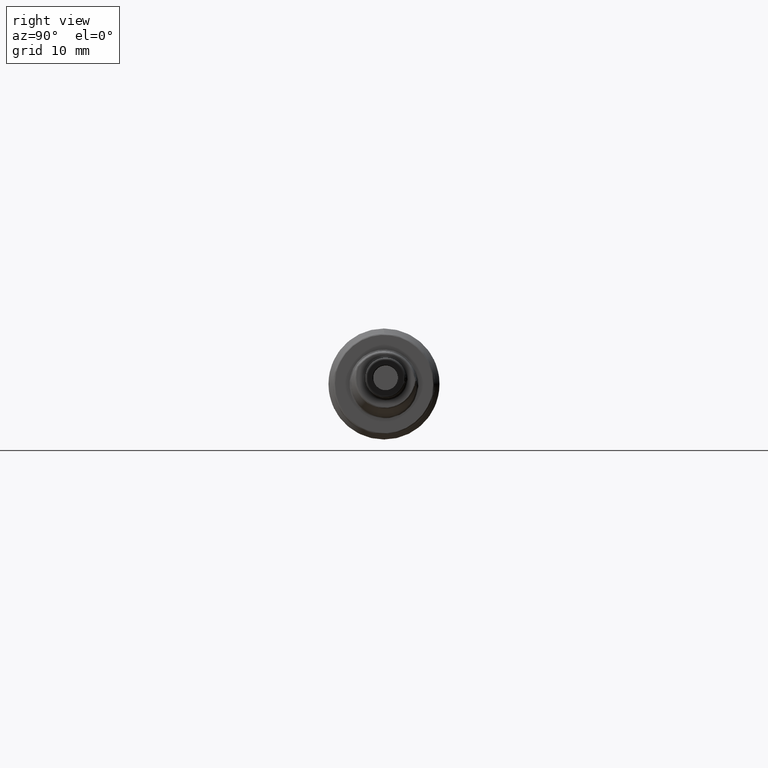
[diagram: clean part render]
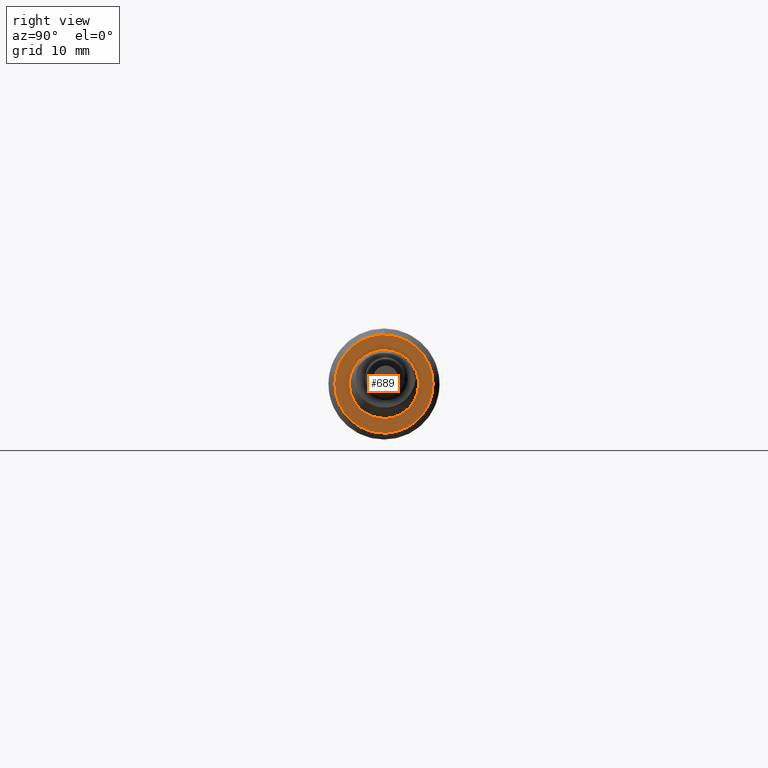
[diagram: same view with one face highlighted and labeled with its STEP entity id]
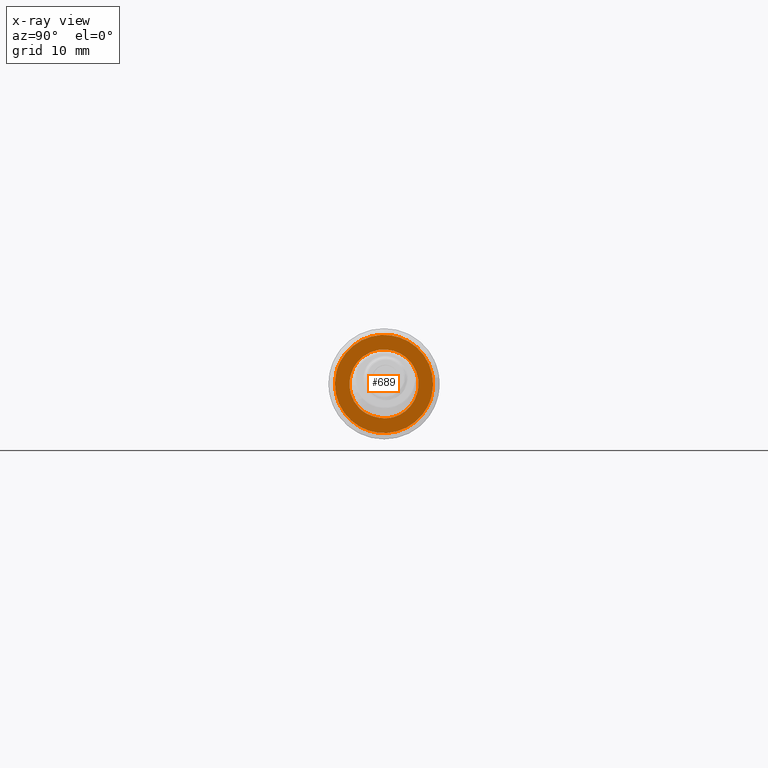
[diagram: x-ray of the same camera — body ghosted, the highlighted face saturated]
A machine part, right view. The second image highlights one B-rep face of the part: STEP entity #689.
The next image is the same camera in x-ray: the body ghosted, the highlighted face saturated — about 0% of this face is hidden behind the body in this view.
In plain terms, the highlighted planar face has unit normal (1, 0, 0).
Its self-contained STEP definition (entity closure, byte-faithful):
#5 = CARTESIAN_POINT ( 'NONE',  ( 2.062992125984252300, 0.1525893212685725000, 0.1591830768728189100 ) ) ;
#14 = CARTESIAN_POINT ( 'NONE',  ( 2.062992125984252300, -0.1869318046776982400, -0.1169212622283033600 ) ) ;
#16 = CARTESIAN_POINT ( 'NONE',  ( 2.062992125984252700, 0.06164002398078607300, 0.2117882309539448100 ) ) ;
#47 = CARTESIAN_POINT ( 'NONE',  ( 2.062992125984252700, 0.2899153778666555000, 0.1209467341589355000 ) ) ;
#51 = ORIENTED_EDGE ( 'NONE', *, *, #2877, .T. ) ;
#58 = CARTESIAN_POINT ( 'NONE',  ( 2.062992125984253600, 0.2352352951570629000, 0.2070805732626559100 ) ) ;
#63 = CARTESIAN_POINT ( 'NONE',  ( 2.062992125984252300, 0.2819333486057165100, -0.1368426284084525200 ) ) ;
#70 = CARTESIAN_POINT ( 'NONE',  ( 2.062992125984252300, 0.2986407186323472000, -0.09691277732411833500 ) ) ;
#94 = CARTESIAN_POINT ( 'NONE',  ( 2.062992125984252700, -0.08279864993907029600, 0.3023331688644408400 ) ) ;
#105 = CARTESIAN_POINT ( 'NONE',  ( 2.062992125984252300, -0.2439831080162786500, -0.1968132688158311700 ) ) ;
#106 = CARTESIAN_POINT ( 'NONE',  ( 2.062992125984252300, -0.06492769751360189000, 0.3069087032163443400 ) ) ;
#114 = CARTESIAN_POINT ( 'NONE',  ( 2.062992125984253600, -0.3058296739857899700, 0.06907007296360626000 ) ) ;
#115 = CARTESIAN_POINT ( 'NONE',  ( 2.062992125984252300, -0.2986407186323472000, 0.09691277732411834900 ) ) ;
#125 = CARTESIAN_POINT ( 'NONE',  ( 2.062992125984253200, -0.1919537826003961700, -0.2477438201958915000 ) ) ;
#127 = CARTESIAN_POINT ( 'NONE',  ( 2.062992125984252300, 0.06907357239015611500, 0.3058294294541355500 ) ) ;
#141 = CARTESIAN_POINT ( 'NONE',  ( 2.062992125984251900, -0.1148877778868597100, -0.2921971259230840000 ) ) ;
#150 = CARTESIAN_POINT ( 'NONE',  ( 2.062992125984252700, -0.3112761098528604200, -0.03632387429331811900 ) ) ;
#151 = CARTESIAN_POINT ( 'NONE',  ( 2.062992125984252700, -0.01313983141252500500, -0.2187593626441411700 ) ) ;
#167 = ORIENTED_EDGE ( 'NONE', *, *, #1809, .T. ) ;
#199 = CARTESIAN_POINT ( 'NONE',  ( 2.062992125984252700, 0.08236366651557995600, -0.2053490536131241900 ) ) ;
#206 = CARTESIAN_POINT ( 'NONE',  ( 2.062992125984252700, -0.1478626255685907300, -0.1642671849071235000 ) ) ;
#235 = CARTESIAN_POINT ( 'NONE',  ( 2.062992125984253600, -0.08674635953978396300, -0.2005990595820023000 ) ) ;
#236 = CARTESIAN_POINT ( 'NONE',  ( 2.062992125984252700, -0.2012787104686376800, 0.08997579787881486400 ) ) ;
#248 = CARTESIAN_POINT ( 'NONE',  ( 2.062992125984252300, -0.02910160080573823100, 0.2185504761639600300 ) ) ;
#249 = CARTESIAN_POINT ( 'NONE',  ( 2.062992125984252300, -0.04629322478919879100, -0.2136691753649089300 ) ) ;
#252 = CARTESIAN_POINT ( 'NONE',  ( 2.062992125984252700, 0.1937836644486549400, 0.1054235246248498400 ) ) ;
#254 = CARTESIAN_POINT ( 'NONE',  ( 2.062992125984251400, 0.2244893625375117600, 0.2189238553553953500 ) ) ;
#256 = CARTESIAN_POINT ( 'NONE',  ( 2.062992125984252700, -0.1668149441552848900, 0.1444951018483242000 ) ) ;
#262 = CARTESIAN_POINT ( 'NONE',  ( 2.062992125984252300, 0.1269226125720199800, 0.1802828470340808200 ) ) ;
#272 = CARTESIAN_POINT ( 'NONE',  ( 2.062992125984251400, -0.2181077267835901700, 0.03716217026752545400 ) ) ;
#279 = CARTESIAN_POINT ( 'NONE',  ( 2.062992125984252300, -0.1904765208491618300, -0.1110514765428699000 ) ) ;
#280 = CARTESIAN_POINT ( 'NONE',  ( 2.062992125984252700, 0.2035069733005890100, 0.08490200787433313500 ) ) ;
#301 = CARTESIAN_POINT ( 'NONE',  ( 2.062992125984252300, 0.3119457341087853400, -0.03017757815996469800 ) ) ;
#331 = EDGE_CURVE ( 'NONE', #866, #1049, #953, .T. ) ;
#340 = CARTESIAN_POINT ( 'NONE',  ( 2.062992125984251900, 0.1819511005490968600, -0.2555602035978886700 ) ) ;
#357 = CARTESIAN_POINT ( 'NONE',  ( 2.062992125984252300, -0.1209467341589353100, 0.2899153778666554400 ) ) ;
#358 = CARTESIAN_POINT ( 'NONE',  ( 2.062992125984252700, 0.3034345220060139500, -0.07834645669291388800 ) ) ;
#364 = CARTESIAN_POINT ( 'NONE',  ( 2.062992125984252300, 0.1968132688158639700, -0.2439831080162593600 ) ) ;
#367 = CARTESIAN_POINT ( 'NONE',  ( 2.062992125984252700, -0.3034345220060140600, 0.07834645669291386000 ) ) ;
#369 = CARTESIAN_POINT ( 'NONE',  ( 2.062992125984252700, 0.02660272498974920700, 0.3122569522475353000 ) ) ;
#382 = CARTESIAN_POINT ( 'NONE',  ( 2.062992125984252300, -0.3111326880179460800, -0.03753429375196859500 ) ) ;
#384 = CARTESIAN_POINT ( 'NONE',  ( 2.062992125984252700, 0.03018025740840848600, 0.3119455468892396400 ) ) ;
#395 = CARTESIAN_POINT ( 'NONE',  ( 2.062992125984252300, -0.1887925304837448100, -0.2501396987023186700 ) ) ;
#396 = CARTESIAN_POINT ( 'NONE',  ( 2.062992125984252300, -0.2477438201959227800, 0.1919537826003553900 ) ) ;
#404 = CARTESIAN_POINT ( 'NONE',  ( 2.062992125984252300, -0.09689222529843132000, -0.2986447071097392800 ) ) ;
#417 = CARTESIAN_POINT ( 'NONE',  ( 2.062992125984252700, -0.2985109993707269500, -0.09544042364734475800 ) ) ;
#428 = CARTESIAN_POINT ( 'NONE',  ( 2.062992125984251900, 0.1838577602994797300, -0.1231751152393008000 ) ) ;
#452 = CARTESIAN_POINT ( 'NONE',  ( 2.062992125984252300, -0.1853064961928692600, 0.1195509368148997800 ) ) ;
#453 = CARTESIAN_POINT ( 'NONE',  ( 2.062992125984252300, 0.1974057765090413700, -0.09820916740295812500 ) ) ;
#454 = DIRECTION ( 'NONE',  ( 0.0000000000000000000, 0.0000000000000000000, -1.000000000000000000 ) ) ;
#467 = VERTEX_POINT ( 'NONE', #1682 ) ;
#494 = CARTESIAN_POINT ( 'NONE',  ( 2.062992125984252300, -0.1354881559151660800, -0.1741763782100797200 ) ) ;
#497 = CARTESIAN_POINT ( 'NONE',  ( 2.062992125984252300, -0.2117867510670789500, 0.06164320394935522000 ) ) ;
#501 = CARTESIAN_POINT ( 'NONE',  ( 2.062992125984252700, -0.02421539991052501900, -0.3124510688097417700 ) ) ;
#504 = EDGE_CURVE ( 'NONE', #1001, #1129, #3342, .T. ) ;
#507 = CARTESIAN_POINT ( 'NONE',  ( 2.062992125984252300, -0.09773862034661179300, -0.1959329508010389000 ) ) ;
#510 = CARTESIAN_POINT ( 'NONE',  ( 2.062992125984252700, -0.2005852787072396300, 0.09151122686248035200 ) ) ;
#513 = CARTESIAN_POINT ( 'NONE',  ( 2.062992125984252700, 0.01356927779736318500, 0.2200561863081790200 ) ) ;
#520 = CARTESIAN_POINT ( 'NONE',  ( 2.062992125984252300, -0.1792902911009147900, 0.1283217673739892000 ) ) ;
#533 = CARTESIAN_POINT ( 'NONE',  ( 2.062992125984252300, 0.3096575601475785600, 0.04934886045913170600 ) ) ;
#534 = CARTESIAN_POINT ( 'NONE',  ( 2.062992125984252700, -0.09535000366734527900, 0.1990445398888910900 ) ) ;
#538 = CARTESIAN_POINT ( 'NONE',  ( 2.062992125984252300, -0.1739964450059606800, -0.1359602166200233600 ) ) ;
#539 = CARTESIAN_POINT ( 'NONE',  ( 2.062992125984252700, 0.04207428274709031800, 0.2168381071500298800 ) ) ;
#546 = CARTESIAN_POINT ( 'NONE',  ( 2.062992125984251900, 0.2199957402612534600, -0.01451364977831450100 ) ) ;
#553 = VERTEX_POINT ( 'NONE', #1727 ) ;
#554 = CARTESIAN_POINT ( 'NONE',  ( 2.062992125984252300, -0.1586006030516225500, -0.1531468116803514400 ) ) ;
#579 = CARTESIAN_POINT ( 'NONE',  ( 2.062992125984252700, 0.3119637016194882800, 0.03001436355030365900 ) ) ;
#597 = CARTESIAN_POINT ( 'NONE',  ( 2.062992125984252300, 0.2644702213584095900, 0.1684740355857638500 ) ) ;
#605 = CARTESIAN_POINT ( 'NONE',  ( 2.062992125984252700, 0.03632387429333677100, -0.3112761098528622500 ) ) ;
#608 = CARTESIAN_POINT ( 'NONE',  ( 2.062992125984253200, -0.2517245936400973000, 0.1866738100583661100 ) ) ;
#613 = CARTESIAN_POINT ( 'NONE',  ( 2.062992125984252700, 0.2091457706890226500, -0.2334001125247296100 ) ) ;
#626 = CARTESIAN_POINT ( 'NONE',  ( 2.062992125984252700, 0.1405358208697507800, -0.2809393141812685000 ) ) ;
#632 = CARTESIAN_POINT ( 'NONE',  ( 2.062992125984252700, -0.2029982536036594200, 0.2387681938682064100 ) ) ;
#641 = CARTESIAN_POINT ( 'NONE',  ( 2.062992125984252300, 0.003490175864280866400, -0.3136569227154446500 ) ) ;
#646 = CARTESIAN_POINT ( 'NONE',  ( 2.062992125984252300, -0.1481661790239309200, -0.2762311733286310600 ) ) ;
#647 = CARTESIAN_POINT ( 'NONE',  ( 2.062992125984252300, -0.1968132688158757400, 0.2439831080162590800 ) ) ;
#653 = CARTESIAN_POINT ( 'NONE',  ( 2.062992125984252700, 0.09544042364738372600, -0.2985109993707137900 ) ) ;
#656 = CARTESIAN_POINT ( 'NONE',  ( 2.062992125984252300, -0.2132579498684654100, -0.2300644017619812300 ) ) ;
#657 = CARTESIAN_POINT ( 'NONE',  ( 2.062992125984252700, -0.2189238553553083400, 0.2244893625376070100 ) ) ;
#667 = CARTESIAN_POINT ( 'NONE',  ( 2.062992125984252700, -0.1855643352018824500, -0.2525432915971651500 ) ) ;
#689 = ADVANCED_FACE ( 'NONE', ( #726, #3276 ), #2849, .T. ) ;
#697 = CARTESIAN_POINT ( 'NONE',  ( 2.062992125984252300, -0.3119457341087874500, 0.03017757815995632900 ) ) ;
#704 = CARTESIAN_POINT ( 'NONE',  ( 2.062992125984252300, 0.06463364627482376400, -0.2107856470099794500 ) ) ;
#717 = CARTESIAN_POINT ( 'NONE',  ( 2.062992125984252300, 0.1289270148711651500, -0.1789633460359463000 ) ) ;
#726 = FACE_OUTER_BOUND ( 'NONE', #738, .T. ) ;
#734 = CARTESIAN_POINT ( 'NONE',  ( 2.062992125984251900, -0.2088240111013917900, 0.07127749340766774400 ) ) ;
#735 = CARTESIAN_POINT ( 'NONE',  ( 2.062992125984252700, 0.1169243228797211100, -0.1869279913215918000 ) ) ;
#738 = EDGE_LOOP ( 'NONE', ( #2782, #2888 ) ) ;
#767 = CARTESIAN_POINT ( 'NONE',  ( 2.062992125984252300, -0.1182010829754081100, -0.1848707398817964500 ) ) ;
#771 = CARTESIAN_POINT ( 'NONE',  ( 2.062992125984252300, -0.07914532355362570400, -0.2033996599041156500 ) ) ;
#778 = CARTESIAN_POINT ( 'NONE',  ( 2.062992125984251900, 0.09951821867695814800, 0.1968642829615531200 ) ) ;
#785 = CARTESIAN_POINT ( 'NONE',  ( 2.062992125984253200, -0.1157216164180880900, -0.1863425600224459200 ) ) ;
#793 = CARTESIAN_POINT ( 'NONE',  ( 2.062992125984252300, 0.2112228341227979400, 0.06362963390737909300 ) ) ;
#798 = CARTESIAN_POINT ( 'NONE',  ( 2.062992125984252700, 0.3127433634846038500, 0.02117733568474373600 ) ) ;
#802 = CARTESIAN_POINT ( 'NONE',  ( 2.062992125984252300, -0.1539541039800705600, 0.1578613808321315300 ) ) ;
#806 = CARTESIAN_POINT ( 'NONE',  ( 2.062992125984251900, 0.1821973241968634600, 0.1250712667591576100 ) ) ;
#809 = CARTESIAN_POINT ( 'NONE',  ( 2.062992125984252700, 0.3136569227154451000, 0.003490175864284374800 ) ) ;
#810 = CARTESIAN_POINT ( 'NONE',  ( 2.062992125984252700, -0.05292297732668374600, 0.2142550711080397100 ) ) ;
#815 = CARTESIAN_POINT ( 'NONE',  ( 2.062992125984252300, 0.2168333254561873600, 0.04020267256485071000 ) ) ;
#825 = CARTESIAN_POINT ( 'NONE',  ( 2.062992125984252300, -0.2199625846874069800, -0.01632530935699216500 ) ) ;
#827 = CARTESIAN_POINT ( 'NONE',  ( 2.062992125984252700, 0.1990445398888770200, 0.09535000366735053900 ) ) ;
#840 = CARTESIAN_POINT ( 'NONE',  ( 2.062992125984252300, -0.2083151000895844300, -0.07469317871206201900 ) ) ;
#862 = CARTESIAN_POINT ( 'NONE',  ( 2.062992125984252300, 0.2985109993707109100, 0.09544042364740400200 ) ) ;
#866 = VERTEX_POINT ( 'NONE', #2726 ) ;
#881 = CARTESIAN_POINT ( 'NONE',  ( 2.062992125984251900, 0.3122570649613430900, -0.02660111197282893200 ) ) ;
#886 = CARTESIAN_POINT ( 'NONE',  ( 2.062992125984252700, 0.2762311733286863500, -0.1481661790238353600 ) ) ;
#891 = CARTESIAN_POINT ( 'NONE',  ( 2.062992125984253200, -0.2922000893123133400, 0.1148814128578112400 ) ) ;
#898 = CARTESIAN_POINT ( 'NONE',  ( 2.062992125984252700, 0.2922000893123132300, -0.1148814128578112400 ) ) ;
#907 = CARTESIAN_POINT ( 'NONE',  ( 2.062992125984252700, -0.03380025719735942800, 0.3115603717666515800 ) ) ;
#914 = CARTESIAN_POINT ( 'NONE',  ( 2.062992125984253200, 0.1209467341589064200, -0.2899153778666829200 ) ) ;
#919 = CARTESIAN_POINT ( 'NONE',  ( 2.062992125984252300, -0.03001436355023604000, 0.3119637016194961600 ) ) ;
#925 = CARTESIAN_POINT ( 'NONE',  ( 2.062992125984253200, 0.2477438201959302200, -0.1919537826003547600 ) ) ;
#928 = CARTESIAN_POINT ( 'NONE',  ( 2.062992125984252700, -0.1345534222994521900, -0.2830328859365786600 ) ) ;
#929 = CARTESIAN_POINT ( 'NONE',  ( 2.062992125984251900, -0.2501396987023374900, 0.1887925304837202700 ) ) ;
#942 = CARTESIAN_POINT ( 'NONE',  ( 2.062992125984252300, -0.3125364556354888700, 0.02309110821099009600 ) ) ;
#944 = CARTESIAN_POINT ( 'NONE',  ( 2.062992125984252300, -0.02921827882054493100, -0.2162907674226246000 ) ) ;
#953 = B_SPLINE_CURVE_WITH_KNOTS ( 'NONE', 3,
 ( #554, #2158, #538, #1111, #14, #2445, #279, #1357, #840, #2428, #1118, #825, #1914, #2975, #1381, #3242, #272, #1656 ),
 .UNSPECIFIED., .F., .F.,
 ( 4, 1, 1, 2, 2, 2, 1, 1, 2, 2, 4 ),
 ( 0.0000000000000000000, 0.1250000000000011400, 0.1875000000000014700, 0.2187500000000015300, 0.2500000000000015500, 0.5000000000000013300, 0.6250000000000011100, 0.6875000000000008900, 0.7187500000000008900, 0.7500000000000007800, 1.000000000000000000 ),
 .UNSPECIFIED. ) ;
#956 = CARTESIAN_POINT ( 'NONE',  ( 2.062992125984252700, -0.3096575601476126400, -0.04934886045900532100 ) ) ;
#968 = CARTESIAN_POINT ( 'NONE',  ( 2.062992125984252300, -0.05505367953036242200, -0.3087744141466213800 ) ) ;
#980 = CARTESIAN_POINT ( 'NONE',  ( 2.062992125984252300, -0.3115603717666432500, -0.03380025719736364000 ) ) ;
#982 = CARTESIAN_POINT ( 'NONE',  ( 2.062992125984252700, 0.05727180057693970200, -0.2130430252400283300 ) ) ;
#1000 = CARTESIAN_POINT ( 'NONE',  ( 2.062992125984252300, -0.02921827882054493100, -0.2162907674226246000 ) ) ;
#1001 = VERTEX_POINT ( 'NONE', #1663 ) ;
#1016 = CARTESIAN_POINT ( 'NONE',  ( 2.062992125984252700, -0.1198455337391964600, -0.1838798346151599400 ) ) ;
#1019 = CARTESIAN_POINT ( 'NONE',  ( 2.062992125984252300, -0.2134715230193064100, 0.05511811023622080500 ) ) ;
#1020 = CARTESIAN_POINT ( 'NONE',  ( 2.062992125984252700, 0.1422213383967820800, -0.1689499223505434900 ) ) ;
#1049 = VERTEX_POINT ( 'NONE', #2822 ) ;
#1063 = CARTESIAN_POINT ( 'NONE',  ( 2.062992125984252300, 0.2134715230193063300, -0.05511811023622083900 ) ) ;
#1075 = CARTESIAN_POINT ( 'NONE',  ( 2.062992125984251900, 0.1358424922031784800, 0.1738120352680058200 ) ) ;
#1081 = CARTESIAN_POINT ( 'NONE',  ( 2.062992125984252300, 0.2439831080162205000, 0.1968132688159411100 ) ) ;
#1083 = CARTESIAN_POINT ( 'NONE',  ( 2.062992125984251900, -0.07785346071553718400, 0.2063044973465128200 ) ) ;
#1099 = CARTESIAN_POINT ( 'NONE',  ( 2.062992125984252300, -0.03102396697065939300, 0.2182866251582867800 ) ) ;
#1111 = CARTESIAN_POINT ( 'NONE',  ( 2.062992125984251900, -0.1832335619335932500, -0.1227702410609696600 ) ) ;
#1112 = CARTESIAN_POINT ( 'NONE',  ( 2.062992125984253200, 0.2204683858757253700, 0.009589861895521840600 ) ) ;
#1118 = CARTESIAN_POINT ( 'NONE',  ( 2.062992125984252700, -0.2183781542218658500, -0.03289326855561886700 ) ) ;
#1129 = VERTEX_POINT ( 'NONE', #358 ) ;
#1139 = CARTESIAN_POINT ( 'NONE',  ( 2.062992125984252700, 0.2387681938681817100, 0.2029982536037015000 ) ) ;
#1146 = CARTESIAN_POINT ( 'NONE',  ( 2.062992125984252300, 0.3115603717666468600, 0.03380025719740009600 ) ) ;
#1172 = CARTESIAN_POINT ( 'NONE',  ( 2.062992125984252300, -0.09544042364740275300, 0.2985109993707112900 ) ) ;
#1182 = CARTESIAN_POINT ( 'NONE',  ( 2.062992125984252300, -0.2802642533878481600, 0.1402645846755808900 ) ) ;
#1188 = CARTESIAN_POINT ( 'NONE',  ( 2.062992125984252300, 0.02117733568474105100, -0.3127433634846035200 ) ) ;
#1193 = CARTESIAN_POINT ( 'NONE',  ( 2.062992125984252300, 0.1368426284084263400, 0.2819333486057316600 ) ) ;
#1205 = CARTESIAN_POINT ( 'NONE',  ( 2.062992125984252700, -0.2899153778666828700, -0.1209467341589063600 ) ) ;
#1207 = CARTESIAN_POINT ( 'NONE',  ( 2.062992125984252700, -0.09790669278667642200, 0.2977115156441755800 ) ) ;
#1212 = CARTESIAN_POINT ( 'NONE',  ( 2.062992125984252300, 0.2836071680917620100, -0.1333380476962547100 ) ) ;
#1215 = CARTESIAN_POINT ( 'NONE',  ( 2.062992125984252300, -0.1402645846756118700, -0.2802642533878274000 ) ) ;
#1225 = CARTESIAN_POINT ( 'NONE',  ( 2.062992125984252300, 0.02199163720728627600, -0.2185719225527546500 ) ) ;
#1237 = CARTESIAN_POINT ( 'NONE',  ( 2.062992125984251900, -0.03018025740840786500, -0.3119455468892518000 ) ) ;
#1284 = EDGE_CURVE ( 'NONE', #467, #553, #1950, .T. ) ;
#1327 = CARTESIAN_POINT ( 'NONE',  ( 2.062992125984252700, 0.002870791511438015800, 0.2205054948817412900 ) ) ;
#1339 = CARTESIAN_POINT ( 'NONE',  ( 2.062992125984252300, 0.09151045671384246100, 0.2005856371173398700 ) ) ;
#1347 = CARTESIAN_POINT ( 'NONE',  ( 2.062992125984252700, -0.1738120352679882200, 0.1358424922031918100 ) ) ;
#1357 = CARTESIAN_POINT ( 'NONE',  ( 2.062992125984252300, -0.2011293366610840700, -0.09231887656827099400 ) ) ;
#1358 = CARTESIAN_POINT ( 'NONE',  ( 2.062992125984252700, 0.2189997767221504900, -0.02879966747699854200 ) ) ;
#1369 = CARTESIAN_POINT ( 'NONE',  ( 2.062992125984252300, 0.2076423940129799300, 0.07420531596367112300 ) ) ;
#1381 = CARTESIAN_POINT ( 'NONE',  ( 2.062992125984252700, -0.2204759576228209100, -0.001929593404044671700 ) ) ;
#1405 = CARTESIAN_POINT ( 'NONE',  ( 2.062992125984251900, 0.1887925304836765600, 0.2501396987023776200 ) ) ;
#1415 = CARTESIAN_POINT ( 'NONE',  ( 2.062992125984252300, 0.3000789681567394600, 0.09039241009182673300 ) ) ;
#1420 = B_SPLINE_CURVE_WITH_KNOTS ( 'NONE', 3,
 ( #2898, #235, #507, #2912, #785, #767, #1016, #2662, #494, #206, #2110 ),
 .UNSPECIFIED., .F., .F.,
 ( 4, 1, 1, 1, 2, 2, 4 ),
 ( 0.0000000000000000000, 0.2500000000000010500, 0.3750000000000018300, 0.4375000000000021600, 0.4687500000000021100, 0.5000000000000020000, 1.000000000000000000 ),
 .UNSPECIFIED. ) ;
#1442 = CARTESIAN_POINT ( 'NONE',  ( 2.062992125984252700, 0.3034345220060139500, -0.07834645669291388800 ) ) ;
#1447 = CARTESIAN_POINT ( 'NONE',  ( 2.062992125984252700, 0.05505367953036407300, 0.3087744141465935100 ) ) ;
#1463 = CARTESIAN_POINT ( 'NONE',  ( 2.062992125984252300, -0.2334001125247162100, -0.2091457706890353100 ) ) ;
#1464 = CARTESIAN_POINT ( 'NONE',  ( 2.062992125984252300, -0.2091457706890249600, 0.2334001125247294200 ) ) ;
#1476 = CARTESIAN_POINT ( 'NONE',  ( 2.062992125984252300, -0.2592722395254480900, 0.1763296683894362000 ) ) ;
#1482 = CARTESIAN_POINT ( 'NONE',  ( 2.062992125984252700, -0.01169271099212203900, -0.3133329486286400800 ) ) ;
#1485 = CARTESIAN_POINT ( 'NONE',  ( 2.062992125984252300, 0.01169271099220850700, 0.3133329486286508000 ) ) ;
#1492 = B_SPLINE_CURVE_WITH_KNOTS ( 'NONE', 3,
 ( #2741, #1975, #2233, #1706, #301, #881, #2198, #2408, #1617, #809, #798, #579, #1146, #2147, #3468, #533, #2687, #3273, #1415, #862, #3207, #47, #1692, #597, #2678, #1081, #1139, #58, #1900, #254, #1965, #2422, #3000, #1405, #1683, #2221, #2750, #3308, #2522, #1773, #1193, #3320, #2261, #1757, #3043, #127, #1447, #2034, #384, #369, #2798, #1720, #1485, #2247, #2788, #919, #907, #2271, #3346, #1731, #106, #94, #1998, #1172, #1207, #357, #2772, #2015, #2024, #647, #632, #3058, #1464, #657, #1741, #2537, #396, #929, #608, #3068, #1476, #3030, #2501, #1182, #3334, #2551, #1986, #891, #115, #2279 ),
 .UNSPECIFIED., .F., .F.,
 ( 4, 1, 1, 1, 2, 2, 1, 1, 1, 2, 2, 1, 1, 2, 2, 2, 1, 1, 2, 2, 1, 1, 1, 2, 2, 1, 1, 1, 2, 2, 2, 1, 1, 1, 2, 2, 1, 1, 1, 2, 2, 1, 1, 2, 2, 2, 1, 1, 2, 2, 1, 1, 1, 2, 2, 1, 1, 1, 2, 2, 4 ),
 ( 0.0000000000000000000, 0.03125000000000050700, 0.04687500000000077700, 0.05468750000000091600, 0.05859375000000097800, 0.06250000000000104100, 0.09375000000000145700, 0.1093750000000016800, 0.1171875000000017900, 0.1210937500000018600, 0.1250000000000019400, 0.1562500000000024400, 0.1718750000000027200, 0.1796875000000028600, 0.1875000000000029700, 0.2500000000000040500, 0.2812500000000045500, 0.2968750000000048800, 0.3046875000000051100, 0.3125000000000053300, 0.3437500000000061100, 0.3593750000000064900, 0.3671875000000066100, 0.3710937500000066600, 0.3750000000000067700, 0.4062500000000069400, 0.4218750000000069400, 0.4296875000000069400, 0.4335937500000069400, 0.4375000000000068800, 0.5000000000000058800, 0.5312500000000054400, 0.5468750000000051100, 0.5546875000000050000, 0.5585937500000050000, 0.5625000000000048800, 0.5937500000000044400, 0.6093750000000042200, 0.6171875000000041100, 0.6210937500000041100, 0.6250000000000040000, 0.6562500000000036600, 0.6718750000000034400, 0.6796875000000033300, 0.6875000000000032200, 0.7500000000000027800, 0.7812500000000026600, 0.7968750000000025500, 0.8046875000000025500, 0.8125000000000026600, 0.8437500000000022200, 0.8593750000000018900, 0.8671875000000018900, 0.8710937500000017800, 0.8750000000000017800, 0.9062500000000012200, 0.9218750000000011100, 0.9296875000000010000, 0.9335937500000008900, 0.9375000000000008900, 1.000000000000000000 ),
 .UNSPECIFIED. ) ;
#1496 = CARTESIAN_POINT ( 'NONE',  ( 2.062992125984252300, -0.1636374866206699300, -0.2676109150069038200 ) ) ;
#1528 = CARTESIAN_POINT ( 'NONE',  ( 2.062992125984252300, 0.2134715230193063300, -0.05511811023622083900 ) ) ;
#1558 = CARTESIAN_POINT ( 'NONE',  ( 2.062992125984252700, -0.1823148059650874500, 0.1239869052791944400 ) ) ;
#1604 = CARTESIAN_POINT ( 'NONE',  ( 2.062992125984252700, 0.01451408760452667000, 0.2199957097377758500 ) ) ;
#1614 = CARTESIAN_POINT ( 'NONE',  ( 2.062992125984252700, 0.1089734910562300000, 0.1918933695432313600 ) ) ;
#1617 = CARTESIAN_POINT ( 'NONE',  ( 2.062992125984252700, 0.3133329486286403100, -0.01169271099211996800 ) ) ;
#1619 = CARTESIAN_POINT ( 'NONE',  ( 2.062992125984252700, -0.06362963390737652600, 0.2112228341227920500 ) ) ;
#1625 = CARTESIAN_POINT ( 'NONE',  ( 2.062992125984252300, 0.07127192846267176000, 0.2088266009034069900 ) ) ;
#1638 = CARTESIAN_POINT ( 'NONE',  ( 2.062992125984252300, 0.2063044973465058300, 0.07785346071553975200 ) ) ;
#1650 = CARTESIAN_POINT ( 'NONE',  ( 2.062992125984252300, -0.009589861895574635200, 0.2204683858757292300 ) ) ;
#1656 = CARTESIAN_POINT ( 'NONE',  ( 2.062992125984252300, -0.2134715230193064100, 0.05511811023622080500 ) ) ;
#1659 = B_SPLINE_CURVE_WITH_KNOTS ( 'NONE', 3,
 ( #1019, #497, #734, #1855, #3462, #236, #510, #2928, #3195, #2084, #452, #1558, #3411, #520, #1347, #256, #2148, #802, #3210, #2680, #1904, #3470, #534, #2409, #1083, #2424, #1619, #810, #2940, #2689, #1099, #248, #2139, #1650, #1327, #2152, #3200, #513, #1604, #3235, #539, #16, #1625, #2683, #3215, #2438, #1339, #2394, #778, #1614, #2405, #1892, #262, #2660, #1075, #2430, #5, #2160, #2934, #3227, #806, #252, #827, #280, #1638, #1369, #793, #2143, #815, #2693, #2700, #2416, #1923, #1112, #1907, #2968, #1915, #2174, #546, #1358, #2134, #1063 ),
 .UNSPECIFIED., .F., .F.,
 ( 4, 1, 1, 1, 2, 2, 1, 1, 2, 2, 1, 2, 2, 2, 1, 2, 2, 1, 1, 2, 2, 1, 1, 1, 2, 2, 2, 1, 1, 1, 2, 2, 1, 1, 2, 2, 1, 2, 2, 2, 1, 2, 2, 1, 1, 2, 2, 1, 1, 1, 2, 2, 4 ),
 ( 0.0000000000000000000, 0.03125000000000049300, 0.04687500000000079800, 0.05468750000000095100, 0.05859375000000103400, 0.06250000000000112400, 0.09375000000000147100, 0.1093750000000017200, 0.1171875000000018000, 0.1250000000000018900, 0.1562500000000021100, 0.1718750000000022200, 0.1875000000000023000, 0.2500000000000026100, 0.2812500000000027200, 0.2968750000000027200, 0.3125000000000027800, 0.3437500000000027200, 0.3593750000000026600, 0.3671875000000026600, 0.3750000000000026600, 0.4062500000000026600, 0.4218750000000027200, 0.4296875000000027200, 0.4335937500000027200, 0.4375000000000027200, 0.5000000000000026600, 0.5312500000000026600, 0.5468750000000026600, 0.5546875000000026600, 0.5585937500000025500, 0.5625000000000025500, 0.5937500000000023300, 0.6093750000000023300, 0.6171875000000022200, 0.6250000000000021100, 0.6562500000000017800, 0.6718750000000016700, 0.6875000000000016700, 0.7500000000000013300, 0.7812500000000013300, 0.7968750000000013300, 0.8125000000000013300, 0.8437500000000013300, 0.8593750000000012200, 0.8671875000000011100, 0.8750000000000010000, 0.9062500000000008900, 0.9218750000000007800, 0.9296875000000006700, 0.9335937500000006700, 0.9375000000000005600, 1.000000000000000000 ),
 .UNSPECIFIED. ) ;
#1663 = CARTESIAN_POINT ( 'NONE',  ( 2.062992125984252700, -0.3034345220060140600, 0.07834645669291386000 ) ) ;
#1676 = CARTESIAN_POINT ( 'NONE',  ( 2.062992125984252300, 0.2134715230193063300, -0.05511811023622083900 ) ) ;
#1682 = CARTESIAN_POINT ( 'NONE',  ( 2.062992125984252300, -0.02921827882054493100, -0.2162907674226246000 ) ) ;
#1683 = CARTESIAN_POINT ( 'NONE',  ( 2.062992125984252300, 0.1866738100583431300, 0.2517245936401184000 ) ) ;
#1692 = CARTESIAN_POINT ( 'NONE',  ( 2.062992125984252300, 0.2809393141813273900, 0.1405358208696332300 ) ) ;
#1698 = B_SPLINE_CURVE_WITH_KNOTS ( 'NONE', 3,
 ( #2836, #982, #2305, #2071, #3109, #1225, #3370, #2584, #3096, #151, #944 ),
 .UNSPECIFIED., .F., .F.,
 ( 4, 1, 1, 1, 2, 2, 4 ),
 ( 0.0000000000000000000, 0.2500000000000000600, 0.3750000000000001100, 0.4375000000000000600, 0.4687500000000000600, 0.5000000000000000000, 1.000000000000000000 ),
 .UNSPECIFIED. ) ;
#1706 = CARTESIAN_POINT ( 'NONE',  ( 2.062992125984252700, 0.3110776417294031600, -0.03849905365337760000 ) ) ;
#1720 = CARTESIAN_POINT ( 'NONE',  ( 2.062992125984252300, 0.02309110821098889600, 0.3125364556354867700 ) ) ;
#1727 = CARTESIAN_POINT ( 'NONE',  ( 2.062992125984252300, -0.07914532355362570400, -0.2033996599041156500 ) ) ;
#1731 = CARTESIAN_POINT ( 'NONE',  ( 2.062992125984252700, -0.04934886045912909700, 0.3096575601475795600 ) ) ;
#1738 = CARTESIAN_POINT ( 'NONE',  ( 2.062992125984252700, 0.08279864993901708800, -0.3023331688644475000 ) ) ;
#1740 = CARTESIAN_POINT ( 'NONE',  ( 2.062992125984252300, -0.3023331688644845200, -0.08279864993890778700 ) ) ;
#1741 = CARTESIAN_POINT ( 'NONE',  ( 2.062992125984252700, -0.2300644017620533700, 0.2132579498683723200 ) ) ;
#1757 = CARTESIAN_POINT ( 'NONE',  ( 2.062992125984252300, 0.1148877778865743000, 0.2921971259231891400 ) ) ;
#1772 = CARTESIAN_POINT ( 'NONE',  ( 2.062992125984253200, -0.3119637016194822800, -0.03001436355024307900 ) ) ;
#1773 = CARTESIAN_POINT ( 'NONE',  ( 2.062992125984253200, 0.1402645846755128100, 0.2802642533878849700 ) ) ;
#1782 = CARTESIAN_POINT ( 'NONE',  ( 2.062992125984252300, -0.2809393141812389100, -0.1405358208698009000 ) ) ;
#1791 = CARTESIAN_POINT ( 'NONE',  ( 2.062992125984252300, -0.3127433634845938600, -0.02117733568463985700 ) ) ;
#1801 = CARTESIAN_POINT ( 'NONE',  ( 2.062992125984252300, 0.1942556994780307300, -0.1042998497479908400 ) ) ;
#1809 = EDGE_CURVE ( 'NONE', #553, #866, #1420, .T. ) ;
#1855 = CARTESIAN_POINT ( 'NONE',  ( 2.062992125984252300, -0.2046052125760682600, 0.08224913333076822000 ) ) ;
#1862 = EDGE_CURVE ( 'NONE', #1129, #1001, #1492, .T. ) ;
#1892 = CARTESIAN_POINT ( 'NONE',  ( 2.062992125984252700, 0.1239869052791736500, 0.1823148059650960800 ) ) ;
#1900 = CARTESIAN_POINT ( 'NONE',  ( 2.062992125984252700, 0.2334001125247532600, 0.2091457706890033100 ) ) ;
#1904 = CARTESIAN_POINT ( 'NONE',  ( 2.062992125984251400, -0.1250712667591636100, 0.1821973241968475300 ) ) ;
#1907 = CARTESIAN_POINT ( 'NONE',  ( 2.062992125984252700, 0.2205054948817383700, -0.002870791511477712800 ) ) ;
#1914 = CARTESIAN_POINT ( 'NONE',  ( 2.062992125984252700, -0.2202961183714337300, -0.009178404636040792300 ) ) ;
#1915 = CARTESIAN_POINT ( 'NONE',  ( 2.062992125984252700, 0.2201590010425038800, -0.01178515608885043000 ) ) ;
#1923 = CARTESIAN_POINT ( 'NONE',  ( 2.062992125984253200, 0.2196581428058145800, 0.02024141773309046800 ) ) ;
#1950 = B_SPLINE_CURVE_WITH_KNOTS ( 'NONE', 3,
 ( #1000, #249, #3175, #771 ),
 .UNSPECIFIED., .F., .F.,
 ( 4, 4 ),
 ( 0.0000000000000000000, 1.000000000000000000 ),
 .UNSPECIFIED. ) ;
#1965 = CARTESIAN_POINT ( 'NONE',  ( 2.062992125984252300, 0.2132579498682058200, 0.2300644017622057700 ) ) ;
#1971 = CARTESIAN_POINT ( 'NONE',  ( 2.062992125984252300, 0.2300644017620700500, -0.2132579498683707400 ) ) ;
#1975 = CARTESIAN_POINT ( 'NONE',  ( 2.062992125984253200, 0.3058296739857870300, -0.06907007296361723800 ) ) ;
#1986 = CARTESIAN_POINT ( 'NONE',  ( 2.062992125984252700, -0.2836071680917621700, 0.1333380476962547400 ) ) ;
#1991 = CARTESIAN_POINT ( 'NONE',  ( 2.062992125984252700, 0.2676109150069775300, -0.1636374866205424800 ) ) ;
#1998 = CARTESIAN_POINT ( 'NONE',  ( 2.062992125984252700, -0.09039241009182451300, 0.3000789681567401800 ) ) ;
#2007 = CARTESIAN_POINT ( 'NONE',  ( 2.062992125984252300, 0.03380025719739917400, -0.3115603717666467500 ) ) ;
#2013 = CARTESIAN_POINT ( 'NONE',  ( 2.062992125984252300, -0.1992122378894646800, -0.2420236843158108900 ) ) ;
#2015 = CARTESIAN_POINT ( 'NONE',  ( 2.062992125984252300, -0.1684740355857140500, 0.2644702213584389500 ) ) ;
#2023 = CARTESIAN_POINT ( 'NONE',  ( 2.062992125984251900, -0.3122570649613445900, 0.02660111197282391200 ) ) ;
#2024 = CARTESIAN_POINT ( 'NONE',  ( 2.062992125984252300, -0.1819511005491125700, 0.2555602035978885600 ) ) ;
#2033 = CARTESIAN_POINT ( 'NONE',  ( 2.062992125984252700, -0.2244893625376601900, -0.2189238553552672100 ) ) ;
#2034 = CARTESIAN_POINT ( 'NONE',  ( 2.062992125984252300, 0.03850364665070980800, 0.3110773207816106000 ) ) ;
#2046 = CARTESIAN_POINT ( 'NONE',  ( 2.062992125984252700, -0.2555602035979145400, -0.1819511005490534200 ) ) ;
#2058 = CARTESIAN_POINT ( 'NONE',  ( 2.062992125984252300, -0.3000789681567682700, -0.09039241009172011000 ) ) ;
#2065 = CARTESIAN_POINT ( 'NONE',  ( 2.062992125984252700, 0.1230092830121215100, -0.1829845326087188000 ) ) ;
#2071 = CARTESIAN_POINT ( 'NONE',  ( 2.062992125984252300, 0.03209138577018086400, -0.2176808710370546100 ) ) ;
#2084 = CARTESIAN_POINT ( 'NONE',  ( 2.062992125984252700, -0.1918933695432135700, 0.1089734910562730500 ) ) ;
#2090 = CARTESIAN_POINT ( 'NONE',  ( 2.062992125984252300, -0.02660272498974884700, -0.3122569522475425700 ) ) ;
#2110 = CARTESIAN_POINT ( 'NONE',  ( 2.062992125984252300, -0.1586006030516225500, -0.1531468116803514400 ) ) ;
#2134 = CARTESIAN_POINT ( 'NONE',  ( 2.062992125984252700, 0.2168445663383465300, -0.04205436963554225200 ) ) ;
#2139 = CARTESIAN_POINT ( 'NONE',  ( 2.062992125984252700, -0.02024141773312072500, 0.2196581428058168600 ) ) ;
#2143 = CARTESIAN_POINT ( 'NONE',  ( 2.062992125984252300, 0.2142550711080500300, 0.05292297732668818000 ) ) ;
#2147 = CARTESIAN_POINT ( 'NONE',  ( 2.062992125984252300, 0.3112761098528623000, 0.03632387429333726300 ) ) ;
#2148 = CARTESIAN_POINT ( 'NONE',  ( 2.062992125984252700, -0.1591830768727947300, 0.1525893212685907900 ) ) ;
#2152 = CARTESIAN_POINT ( 'NONE',  ( 2.062992125984252700, 0.009109577780746617300, 0.2202970057408590000 ) ) ;
#2158 = CARTESIAN_POINT ( 'NONE',  ( 2.062992125984252300, -0.1650368295970391400, -0.1464813812983530600 ) ) ;
#2160 = CARTESIAN_POINT ( 'NONE',  ( 2.062992125984252300, 0.1578613808321199000, 0.1539541039800861300 ) ) ;
#2174 = CARTESIAN_POINT ( 'NONE',  ( 2.062992125984252300, 0.2200561863081783000, -0.01356927779737050100 ) ) ;
#2186 = AXIS2_PLACEMENT_3D ( 'NONE', #3133, #2390, #454 ) ;
#2198 = CARTESIAN_POINT ( 'NONE',  ( 2.062992125984252300, 0.3124511280322472800, -0.02421455239316028200 ) ) ;
#2202 = EDGE_LOOP ( 'NONE', ( #2370, #2688, #167, #2334, #2326, #51 ) ) ;
#2221 = CARTESIAN_POINT ( 'NONE',  ( 2.062992125984252700, 0.1855643352018988300, 0.2525432915971556600 ) ) ;
#2233 = CARTESIAN_POINT ( 'NONE',  ( 2.062992125984251900, 0.3087748420769836900, -0.05504755553392103700 ) ) ;
#2242 = CARTESIAN_POINT ( 'NONE',  ( 2.062992125984252300, 0.06492769751353105700, -0.3069087032163532700 ) ) ;
#2247 = CARTESIAN_POINT ( 'NONE',  ( 2.062992125984252300, -0.003490175864129497000, 0.3136569227154636400 ) ) ;
#2261 = CARTESIAN_POINT ( 'NONE',  ( 2.062992125984252700, 0.1333376498819570900, 0.2836073533035823900 ) ) ;
#2268 = CARTESIAN_POINT ( 'NONE',  ( 2.062992125984252700, 0.2420236843158773400, -0.1992122378893937400 ) ) ;
#2270 = CARTESIAN_POINT ( 'NONE',  ( 2.062992125984252700, -0.1866738100583788500, -0.2517245936400875400 ) ) ;
#2271 = CARTESIAN_POINT ( 'NONE',  ( 2.062992125984252300, -0.03632387429331596100, 0.3112761098528646900 ) ) ;
#2279 = CARTESIAN_POINT ( 'NONE',  ( 2.062992125984252700, -0.3034345220060140600, 0.07834645669291386000 ) ) ;
#2291 = CARTESIAN_POINT ( 'NONE',  ( 2.062992125984252300, -0.3110776417294068300, 0.03849905365336320900 ) ) ;
#2300 = B_SPLINE_CURVE_WITH_KNOTS ( 'NONE', 3,
 ( #1528, #2362, #2848, #3132, #453, #2352, #1801, #428, #2862, #2612, #1020, #717, #2065, #2321, #735, #2880, #199, #704 ),
 .UNSPECIFIED., .F., .F.,
 ( 4, 1, 1, 2, 2, 2, 1, 1, 2, 2, 4 ),
 ( 0.0000000000000000000, 0.1250000000000000600, 0.1875000000000002500, 0.2187500000000003600, 0.2500000000000004400, 0.5000000000000003300, 0.6250000000000001100, 0.6874999999999998900, 0.7187499999999997800, 0.7499999999999996700, 1.000000000000000000 ),
 .UNSPECIFIED. ) ;
#2303 = CARTESIAN_POINT ( 'NONE',  ( 2.062992125984252700, -0.06907357239015517200, -0.3058294294541514200 ) ) ;
#2305 = CARTESIAN_POINT ( 'NONE',  ( 2.062992125984252300, 0.04590875553088726000, -0.2157400797891946600 ) ) ;
#2315 = CARTESIAN_POINT ( 'NONE',  ( 2.062992125984252300, -0.2977115156441720900, -0.09790669278668018300 ) ) ;
#2321 = CARTESIAN_POINT ( 'NONE',  ( 2.062992125984252700, 0.1190152029652526000, -0.1856052612747956000 ) ) ;
#2326 = ORIENTED_EDGE ( 'NONE', *, *, #2518, .T. ) ;
#2334 = ORIENTED_EDGE ( 'NONE', *, *, #331, .T. ) ;
#2352 = CARTESIAN_POINT ( 'NONE',  ( 2.062992125984252700, 0.1953036420347440100, -0.1023230546845777100 ) ) ;
#2362 = CARTESIAN_POINT ( 'NONE',  ( 2.062992125984252300, 0.2111551010165055300, -0.06408957407585674800 ) ) ;
#2370 = ORIENTED_EDGE ( 'NONE', *, *, #3085, .T. ) ;
#2377 = VERTEX_POINT ( 'NONE', #3114 ) ;
#2390 = DIRECTION ( 'NONE',  ( 1.000000000000000000, 0.0000000000000000000, 0.0000000000000000000 ) ) ;
#2394 = CARTESIAN_POINT ( 'NONE',  ( 2.062992125984252700, 0.09223231924228442200, 0.2002549790128771700 ) ) ;
#2405 = CARTESIAN_POINT ( 'NONE',  ( 2.062992125984252700, 0.1195509368148674900, 0.1853064961928827800 ) ) ;
#2408 = CARTESIAN_POINT ( 'NONE',  ( 2.062992125984252300, 0.3125364556354877600, -0.02309110821099996300 ) ) ;
#2409 = CARTESIAN_POINT ( 'NONE',  ( 2.062992125984252700, -0.08490200787432905500, 0.2035069733006001400 ) ) ;
#2416 = CARTESIAN_POINT ( 'NONE',  ( 2.062992125984252300, 0.2185504761639605600, 0.02910160080574577000 ) ) ;
#2422 = CARTESIAN_POINT ( 'NONE',  ( 2.062992125984251900, 0.1992122378892701400, 0.2420236843159791200 ) ) ;
#2424 = CARTESIAN_POINT ( 'NONE',  ( 2.062992125984252300, -0.07420531596367245500, 0.2076423940129828400 ) ) ;
#2428 = CARTESIAN_POINT ( 'NONE',  ( 2.062992125984252300, -0.2156380391894383900, -0.04690897332542489500 ) ) ;
#2430 = CARTESIAN_POINT ( 'NONE',  ( 2.062992125984252700, 0.1444951018483011100, 0.1668149441553158400 ) ) ;
#2438 = CARTESIAN_POINT ( 'NONE',  ( 2.062992125984251900, 0.08997433211205248200, 0.2012793926039898300 ) ) ;
#2445 = CARTESIAN_POINT ( 'NONE',  ( 2.062992125984252300, -0.1893394061396677400, -0.1129783580810812000 ) ) ;
#2494 = CARTESIAN_POINT ( 'NONE',  ( 2.062992125984253200, 0.1684740355857049500, -0.2644702213584391200 ) ) ;
#2501 = CARTESIAN_POINT ( 'NONE',  ( 2.062992125984252700, -0.2762311733286666500, 0.1481661790238778500 ) ) ;
#2508 = CARTESIAN_POINT ( 'NONE',  ( 2.062992125984252700, 0.2802642533878596000, -0.1402645846755561600 ) ) ;
#2517 = CARTESIAN_POINT ( 'NONE',  ( 2.062992125984252300, 0.09790669278668001600, -0.2977115156441721400 ) ) ;
#2518 = EDGE_CURVE ( 'NONE', #1049, #2670, #1659, .T. ) ;
#2522 = CARTESIAN_POINT ( 'NONE',  ( 2.062992125984252300, 0.1481661790237608400, 0.2762311733287295400 ) ) ;
#2530 = CARTESIAN_POINT ( 'NONE',  ( 2.062992125984252300, 0.03753429375195813100, -0.3111326880179497400 ) ) ;
#2537 = CARTESIAN_POINT ( 'NONE',  ( 2.062992125984252700, -0.2420236843158648800, 0.1992122378893948500 ) ) ;
#2540 = CARTESIAN_POINT ( 'NONE',  ( 2.062992125984252300, -0.02309110821099979300, -0.3125364556354879900 ) ) ;
#2545 = CARTESIAN_POINT ( 'NONE',  ( 2.062992125984252700, 0.2189238553553178300, -0.2244893625376061200 ) ) ;
#2550 = CARTESIAN_POINT ( 'NONE',  ( 2.062992125984251900, -0.1763296683894765000, -0.2592722395254210600 ) ) ;
#2551 = CARTESIAN_POINT ( 'NONE',  ( 2.062992125984252700, -0.2830328859365851000, 0.1345534222994423700 ) ) ;
#2561 = CARTESIAN_POINT ( 'NONE',  ( 2.062992125984252700, -0.1368426284084860700, -0.2819333486056973000 ) ) ;
#2568 = CARTESIAN_POINT ( 'NONE',  ( 2.062992125984252700, -0.2352352951570836600, -0.2070805732626166400 ) ) ;
#2581 = CARTESIAN_POINT ( 'NONE',  ( 2.062992125984251900, -0.3087748420769886300, 0.05504755553390183700 ) ) ;
#2584 = CARTESIAN_POINT ( 'NONE',  ( 2.062992125984252300, 0.01885873375213707700, -0.2187688204300297900 ) ) ;
#2612 = CARTESIAN_POINT ( 'NONE',  ( 2.062992125984251900, 0.1527358143121938200, -0.1592858648791686300 ) ) ;
#2660 = CARTESIAN_POINT ( 'NONE',  ( 2.062992125984252300, 0.1283217673739925300, 0.1792902911009103800 ) ) ;
#2662 = CARTESIAN_POINT ( 'NONE',  ( 2.062992125984252700, -0.1206015089773587500, -0.1834180174254144100 ) ) ;
#2670 = VERTEX_POINT ( 'NONE', #1676 ) ;
#2678 = CARTESIAN_POINT ( 'NONE',  ( 2.062992125984251900, 0.2555602035978369300, 0.1819511005491998800 ) ) ;
#2680 = CARTESIAN_POINT ( 'NONE',  ( 2.062992125984252300, -0.1372757401521568800, 0.1731916293566394800 ) ) ;
#2683 = CARTESIAN_POINT ( 'NONE',  ( 2.062992125984253200, 0.08224495962202128800, 0.2046071549275796900 ) ) ;
#2687 = CARTESIAN_POINT ( 'NONE',  ( 2.062992125984252700, 0.3069087032163428400, 0.06492769751360651100 ) ) ;
#2688 = ORIENTED_EDGE ( 'NONE', *, *, #1284, .T. ) ;
#2689 = CARTESIAN_POINT ( 'NONE',  ( 2.062992125984252300, -0.03470199793455446000, 0.2177327154336720900 ) ) ;
#2693 = CARTESIAN_POINT ( 'NONE',  ( 2.062992125984252300, 0.2177327154336769200, 0.03470199793455658300 ) ) ;
#2700 = CARTESIAN_POINT ( 'NONE',  ( 2.062992125984253200, 0.2182866251582896200, 0.03102396697066055900 ) ) ;
#2726 = CARTESIAN_POINT ( 'NONE',  ( 2.062992125984252300, -0.1586006030516225500, -0.1531468116803514400 ) ) ;
#2741 = CARTESIAN_POINT ( 'NONE',  ( 2.062992125984252700, 0.3034345220060139500, -0.07834645669291388800 ) ) ;
#2750 = CARTESIAN_POINT ( 'NONE',  ( 2.062992125984252300, 0.1763296683893469900, 0.2592722395254960500 ) ) ;
#2766 = CARTESIAN_POINT ( 'NONE',  ( 2.062992125984252300, 0.04934886045908859500, -0.3096575601475844400 ) ) ;
#2772 = CARTESIAN_POINT ( 'NONE',  ( 2.062992125984251900, -0.1405358208697330700, 0.2809393141812685500 ) ) ;
#2780 = CARTESIAN_POINT ( 'NONE',  ( 2.062992125984252300, 0.2501396987023419300, -0.1887925304837198800 ) ) ;
#2782 = ORIENTED_EDGE ( 'NONE', *, *, #504, .T. ) ;
#2788 = CARTESIAN_POINT ( 'NONE',  ( 2.062992125984252700, -0.02117733568462770000, 0.3127433634846177300 ) ) ;
#2794 = CARTESIAN_POINT ( 'NONE',  ( 2.062992125984252300, 0.2592722395254631900, -0.1763296683894038700 ) ) ;
#2798 = CARTESIAN_POINT ( 'NONE',  ( 2.062992125984251900, 0.02421539991052518500, 0.3124510688097379400 ) ) ;
#2819 = CARTESIAN_POINT ( 'NONE',  ( 2.062992125984252300, -0.3133329486286324200, 0.01169271099219915100 ) ) ;
#2822 = CARTESIAN_POINT ( 'NONE',  ( 2.062992125984252300, -0.2134715230193064100, 0.05511811023622080500 ) ) ;
#2835 = CARTESIAN_POINT ( 'NONE',  ( 2.062992125984252300, -0.03850364665070864200, -0.3110773207816313600 ) ) ;
#2836 = CARTESIAN_POINT ( 'NONE',  ( 2.062992125984252300, 0.06463364627482376400, -0.2107856470099794500 ) ) ;
#2844 = CARTESIAN_POINT ( 'NONE',  ( 2.062992125984252300, -0.2644702213584537700, -0.1684740355856800300 ) ) ;
#2848 = CARTESIAN_POINT ( 'NONE',  ( 2.062992125984252700, 0.2068713907498211900, -0.07722804585971200500 ) ) ;
#2849 = PLANE ( 'NONE',  #2186 ) ;
#2862 = CARTESIAN_POINT ( 'NONE',  ( 2.062992125984251900, 0.1725905547628615300, -0.1385162527579037500 ) ) ;
#2877 = EDGE_CURVE ( 'NONE', #2670, #2377, #2300, .T. ) ;
#2880 = CARTESIAN_POINT ( 'NONE',  ( 2.062992125984252300, 0.09913502932634663000, -0.1977991367322024500 ) ) ;
#2888 = ORIENTED_EDGE ( 'NONE', *, *, #1862, .T. ) ;
#2898 = CARTESIAN_POINT ( 'NONE',  ( 2.062992125984252300, -0.07914532355362570400, -0.2033996599041156500 ) ) ;
#2912 = CARTESIAN_POINT ( 'NONE',  ( 2.062992125984252300, -0.1098466615695457400, -0.1896750427021584900 ) ) ;
#2928 = CARTESIAN_POINT ( 'NONE',  ( 2.062992125984252300, -0.2002549790128784800, 0.09223231924228138300 ) ) ;
#2934 = CARTESIAN_POINT ( 'NONE',  ( 2.062992125984252700, 0.1603862305617248500, 0.1513229887504136700 ) ) ;
#2940 = CARTESIAN_POINT ( 'NONE',  ( 2.062992125984252300, -0.04020267256484740700, 0.2168333254561797300 ) ) ;
#2968 = CARTESIAN_POINT ( 'NONE',  ( 2.062992125984252300, 0.2202970057408572300, -0.009109577780769796700 ) ) ;
#2975 = CARTESIAN_POINT ( 'NONE',  ( 2.062992125984252700, -0.2204416946176599200, -0.004403501315699248600 ) ) ;
#3000 = CARTESIAN_POINT ( 'NONE',  ( 2.062992125984252700, 0.1919537826002826500, 0.2477438201959895600 ) ) ;
#3024 = CARTESIAN_POINT ( 'NONE',  ( 2.062992125984252700, 0.03001436355030211500, -0.3119637016194879400 ) ) ;
#3030 = CARTESIAN_POINT ( 'NONE',  ( 2.062992125984252700, -0.2676109150069513900, 0.1636374866205989600 ) ) ;
#3041 = CARTESIAN_POINT ( 'NONE',  ( 2.062992125984252700, 0.2525432915971598200, -0.1855643352018915800 ) ) ;
#3043 = CARTESIAN_POINT ( 'NONE',  ( 2.062992125984252300, 0.09689222529842955700, 0.2986447071097709800 ) ) ;
#3052 = CARTESIAN_POINT ( 'NONE',  ( 2.062992125984252700, 0.2830328859365886000, -0.1345534222994345700 ) ) ;
#3057 = CARTESIAN_POINT ( 'NONE',  ( 2.062992125984252300, -0.2387681938682189600, -0.2029982536036306900 ) ) ;
#3058 = CARTESIAN_POINT ( 'NONE',  ( 2.062992125984252300, -0.2070805732626324900, 0.2352352951570767000 ) ) ;
#3064 = CARTESIAN_POINT ( 'NONE',  ( 2.062992125984252300, 0.2029982536036517300, -0.2387681938682065000 ) ) ;
#3068 = CARTESIAN_POINT ( 'NONE',  ( 2.062992125984252700, -0.2525432915971615500, 0.1855643352018875900 ) ) ;
#3075 = CARTESIAN_POINT ( 'NONE',  ( 2.062992125984253200, 0.2070805732626282400, -0.2352352951570766700 ) ) ;
#3085 = EDGE_CURVE ( 'NONE', #2377, #467, #1698, .T. ) ;
#3094 = CARTESIAN_POINT ( 'NONE',  ( 2.062992125984252300, -0.3136569227154316600, -0.003490175864145841600 ) ) ;
#3096 = CARTESIAN_POINT ( 'NONE',  ( 2.062992125984252300, 0.002566381558892860800, -0.2196017115109446800 ) ) ;
#3109 = CARTESIAN_POINT ( 'NONE',  ( 2.062992125984252700, 0.02504257992141633800, -0.2183498235627759400 ) ) ;
#3114 = CARTESIAN_POINT ( 'NONE',  ( 2.062992125984252300, 0.06463364627482376400, -0.2107856470099794500 ) ) ;
#3132 = CARTESIAN_POINT ( 'NONE',  ( 2.062992125984252700, 0.2004578435626771000, -0.09199849598357889800 ) ) ;
#3133 = CARTESIAN_POINT ( 'NONE',  ( 2.062992125984252300, -1.905463975580823500E-017, 3.332107562584632300E-018 ) ) ;
#3175 = CARTESIAN_POINT ( 'NONE',  ( 2.062992125984252300, -0.06293557303356210600, -0.2093721395254155300 ) ) ;
#3195 = CARTESIAN_POINT ( 'NONE',  ( 2.062992125984252700, -0.1968642829615429000, 0.09951821867698273900 ) ) ;
#3200 = CARTESIAN_POINT ( 'NONE',  ( 2.062992125984252300, 0.01178515608883649500, 0.2201590010425049900 ) ) ;
#3207 = CARTESIAN_POINT ( 'NONE',  ( 2.062992125984252300, 0.2977115156441755300, 0.09790669278667639400 ) ) ;
#3210 = CARTESIAN_POINT ( 'NONE',  ( 2.062992125984252300, -0.1513229887503994800, 0.1603862305617364000 ) ) ;
#3215 = CARTESIAN_POINT ( 'NONE',  ( 2.062992125984252700, 0.08766542751765002400, 0.2023063792104493600 ) ) ;
#3227 = CARTESIAN_POINT ( 'NONE',  ( 2.062992125984252300, 0.1731916293566851700, 0.1372757401521004500 ) ) ;
#3235 = CARTESIAN_POINT ( 'NONE',  ( 2.062992125984252700, 0.02879266225760382400, 0.2190002650977948800 ) ) ;
#3242 = CARTESIAN_POINT ( 'NONE',  ( 2.062992125984252300, -0.2204412529602209600, 0.01891841761018632500 ) ) ;
#3273 = CARTESIAN_POINT ( 'NONE',  ( 2.062992125984252300, 0.3023331688644395600, 0.08279864993907368200 ) ) ;
#3276 = FACE_BOUND ( 'NONE', #2202, .T. ) ;
#3294 = CARTESIAN_POINT ( 'NONE',  ( 2.062992125984252300, 0.09039241009179026200, -0.3000789681567444500 ) ) ;
#3308 = CARTESIAN_POINT ( 'NONE',  ( 2.062992125984252300, 0.1636374866204430800, 0.2676109150070351500 ) ) ;
#3318 = CARTESIAN_POINT ( 'NONE',  ( 2.062992125984252700, -0.3069087032164027300, -0.06492769751338529900 ) ) ;
#3320 = CARTESIAN_POINT ( 'NONE',  ( 2.062992125984252300, 0.1345534222994208600, 0.2830328859365967600 ) ) ;
#3333 = CARTESIAN_POINT ( 'NONE',  ( 2.062992125984252300, -0.3124511280322478900, 0.02421455239315764600 ) ) ;
#3334 = CARTESIAN_POINT ( 'NONE',  ( 2.062992125984252300, -0.2819333486057095100, 0.1368426284084674500 ) ) ;
#3340 = CARTESIAN_POINT ( 'NONE',  ( 2.062992125984252700, 0.2517245936400996900, -0.1866738100583658400 ) ) ;
#3342 = B_SPLINE_CURVE_WITH_KNOTS ( 'NONE', 3,
 ( #367, #114, #2581, #2291, #697, #2023, #3333, #942, #2819, #3094, #1791, #1772, #980, #150, #382, #956, #3318, #1740, #2058, #417, #2315, #1205, #1782, #2844, #2046, #105, #3057, #2568, #1463, #2033, #656, #2013, #125, #395, #2270, #667, #2550, #1496, #646, #1215, #2561, #928, #3354, #141, #404, #2303, #968, #2835, #1237, #2090, #501, #2540, #1482, #641, #1188, #3024, #2007, #605, #2530, #2766, #2242, #1738, #3294, #653, #2517, #914, #626, #2494, #340, #364, #3064, #3075, #613, #2545, #1971, #2268, #925, #2780, #3340, #3041, #2794, #1991, #886, #2508, #63, #3052, #1212, #898, #70, #1442 ),
 .UNSPECIFIED., .F., .F.,
 ( 4, 1, 1, 1, 2, 2, 1, 1, 1, 2, 2, 1, 1, 2, 2, 2, 1, 1, 2, 2, 1, 1, 1, 2, 2, 1, 1, 1, 2, 2, 2, 1, 1, 1, 2, 2, 1, 1, 1, 2, 2, 1, 1, 2, 2, 2, 1, 1, 2, 2, 1, 1, 1, 2, 2, 1, 1, 1, 2, 2, 4 ),
 ( 0.0000000000000000000, 0.03124999999999994400, 0.04687499999999991700, 0.05468749999999988900, 0.05859374999999988200, 0.06249999999999987500, 0.09374999999999993100, 0.1093749999999999600, 0.1171874999999999600, 0.1210937499999999600, 0.1249999999999999700, 0.1562500000000001700, 0.1718750000000002800, 0.1796875000000003300, 0.1875000000000004200, 0.2500000000000010000, 0.2812500000000012800, 0.2968750000000013900, 0.3046875000000015000, 0.3125000000000016100, 0.3437500000000016700, 0.3593750000000016700, 0.3671875000000016700, 0.3710937500000016700, 0.3750000000000016700, 0.4062500000000012800, 0.4218750000000010000, 0.4296875000000008900, 0.4335937500000008300, 0.4375000000000007800, 0.5000000000000010000, 0.5312500000000010000, 0.5468750000000010000, 0.5546875000000010000, 0.5585937500000010000, 0.5625000000000010000, 0.5937500000000010000, 0.6093750000000011100, 0.6171875000000011100, 0.6210937500000011100, 0.6250000000000011100, 0.6562500000000011100, 0.6718750000000011100, 0.6796875000000011100, 0.6875000000000011100, 0.7500000000000008900, 0.7812500000000006700, 0.7968750000000006700, 0.8046875000000006700, 0.8125000000000006700, 0.8437500000000002200, 0.8593750000000001100, 0.8671875000000001100, 0.8710937500000001100, 0.8750000000000001100, 0.9062500000000001100, 0.9218750000000002200, 0.9296875000000002200, 0.9335937500000002200, 0.9375000000000002200, 1.000000000000000000 ),
 .UNSPECIFIED. ) ;
#3346 = CARTESIAN_POINT ( 'NONE',  ( 2.062992125984252300, -0.03753429375195321800, 0.3111326880179502400 ) ) ;
#3354 = CARTESIAN_POINT ( 'NONE',  ( 2.062992125984252700, -0.1333376498819391900, -0.2836073533035891000 ) ) ;
#3370 = CARTESIAN_POINT ( 'NONE',  ( 2.062992125984252700, 0.01995100297079901600, -0.2187056341128258100 ) ) ;
#3411 = CARTESIAN_POINT ( 'NONE',  ( 2.062992125984252300, -0.1802828470340760200, 0.1269226125720315200 ) ) ;
#3462 = CARTESIAN_POINT ( 'NONE',  ( 2.062992125984251900, -0.2023052461720676000, 0.08766786218108578400 ) ) ;
#3468 = CARTESIAN_POINT ( 'NONE',  ( 2.062992125984252700, 0.3111326880179505200, 0.03753429375195273300 ) ) ;
#3470 = CARTESIAN_POINT ( 'NONE',  ( 2.062992125984252300, -0.1054235246248467500, 0.1937836644486629100 ) ) ;